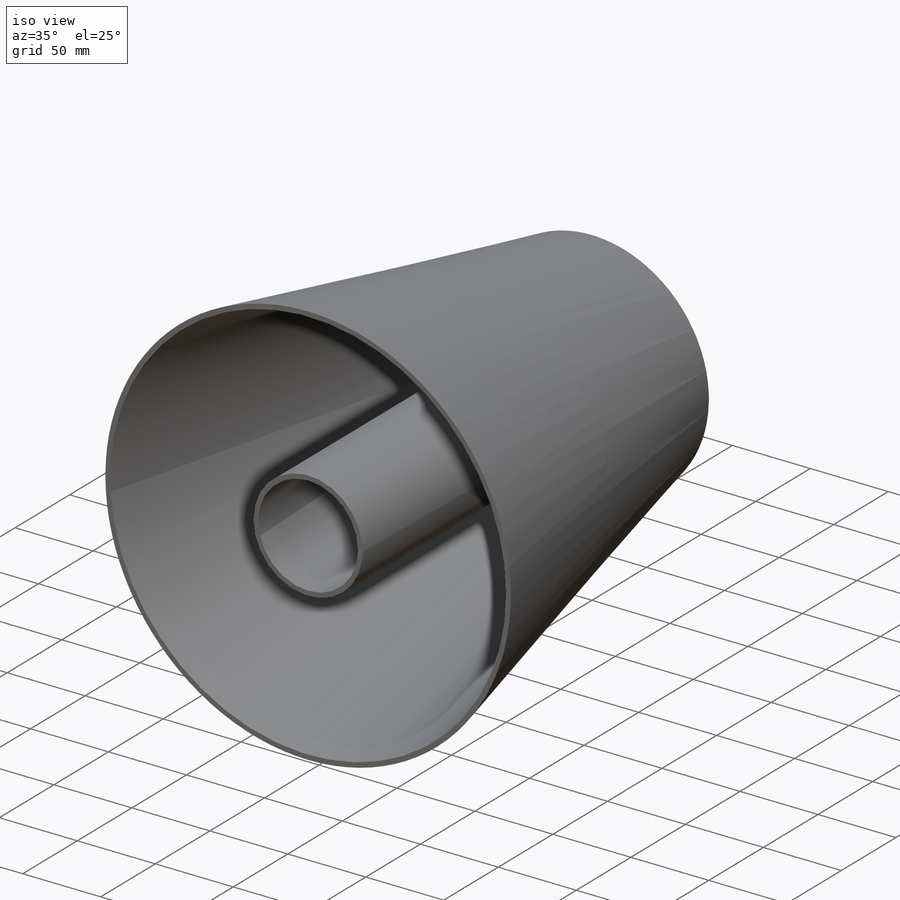
[diagram: iso view]
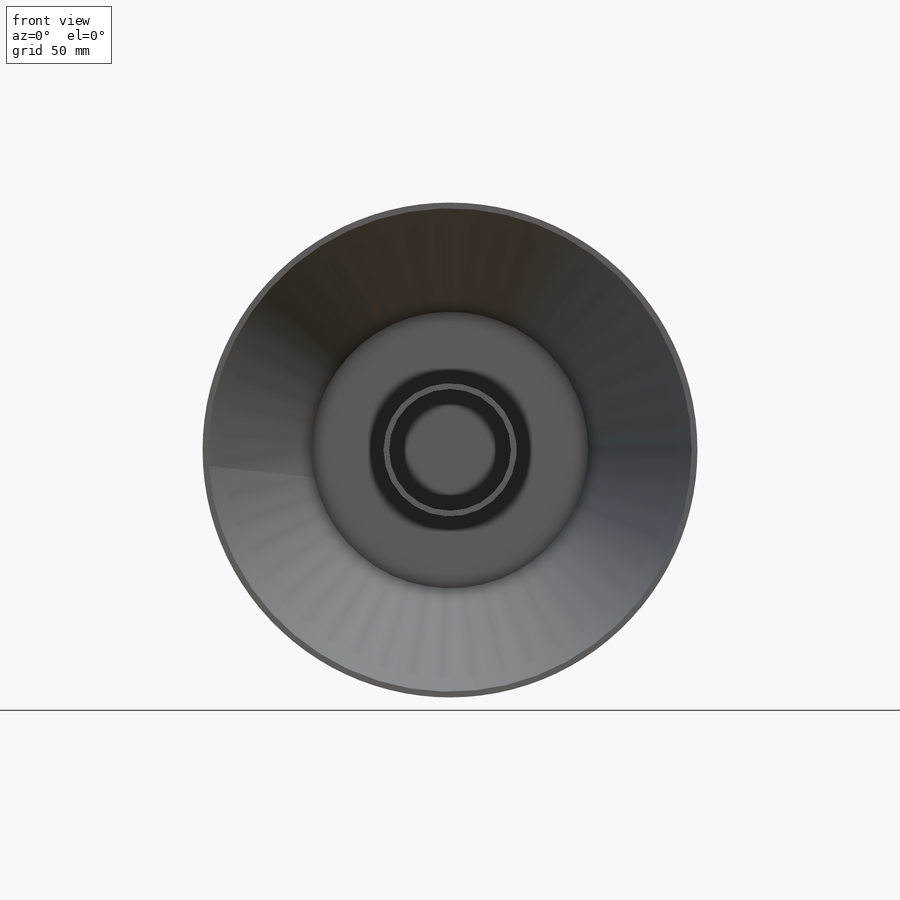
[diagram: front view]
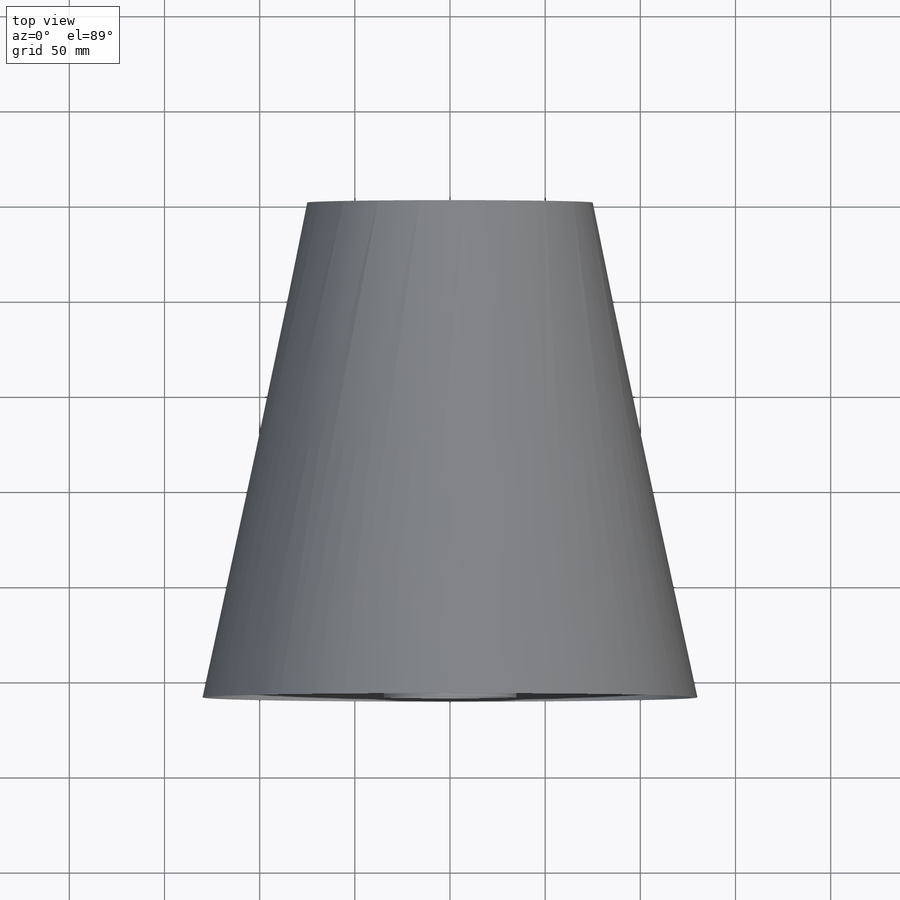
[diagram: top view]
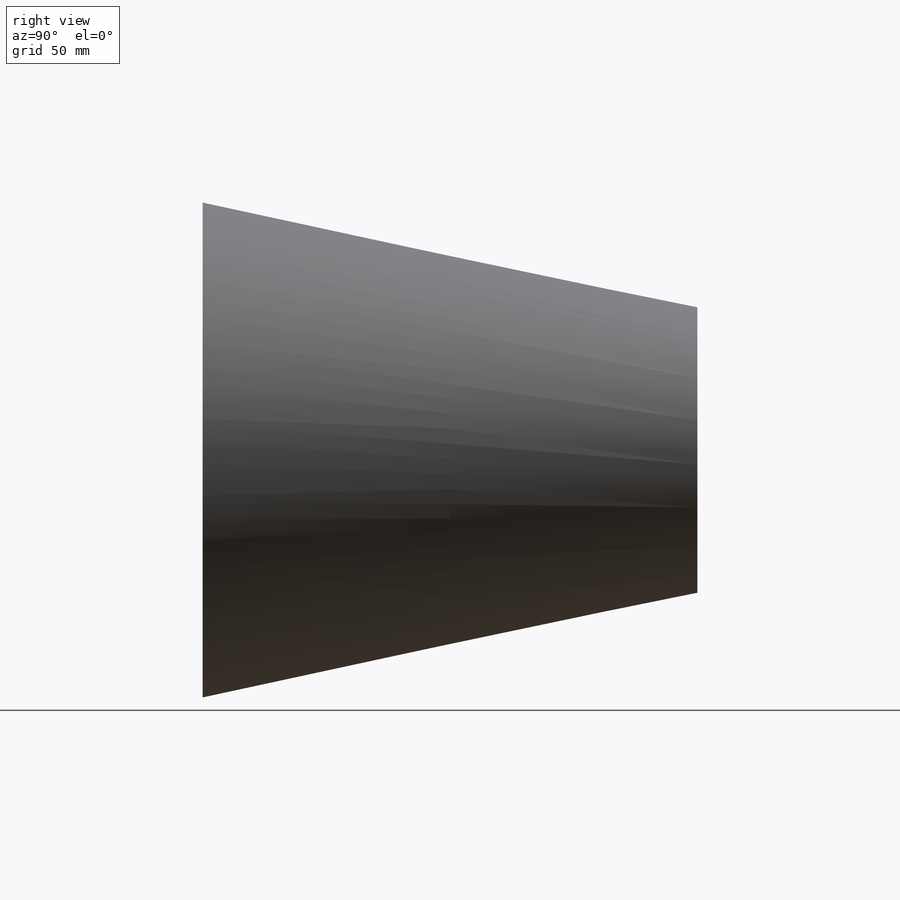
[diagram: right view]
SOLIDWORKS PART (.sldprt)
format: sldprt  version: not decoded by parser v0  size: 202,240 bytes
history: native  units: mm
features: sketch x6, extrude x2, material x1, plane x1 (+13 scaffold rows collapsed)
feature tree (23):
  scaffold x13  (default folders/planes/origin — collapsed)
  material  "Material <not specified>"
  sketch  "Sketch1"  dims[D1=~21.055883mm]
  plane  "Plane1"  Offset=260mm
  sketch  "Sketch2"  dims[D1=~128.688586mm]
  sketch  "Sketch3"  dims[D1=73.0mm]
  sketch  "Sketch4"  dims[D1=~123.899887mm]
  sketch  "Sketch5"
  extrude  "Boss-Extrude1"  Depth=3mm
  sketch  "Sketch6"  dims[D1=~30.275973mm]
  extrude  "Boss-Extrude2"  Depth=257mm
decode coverage: 7 of 8 modeling features carry decoded parameters
note: ~ marks probable driven/reference dimensions
note: suppression state not decoded; provenance and decode notes live in map.json
